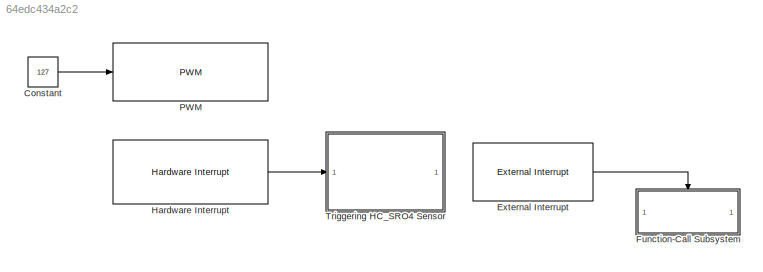
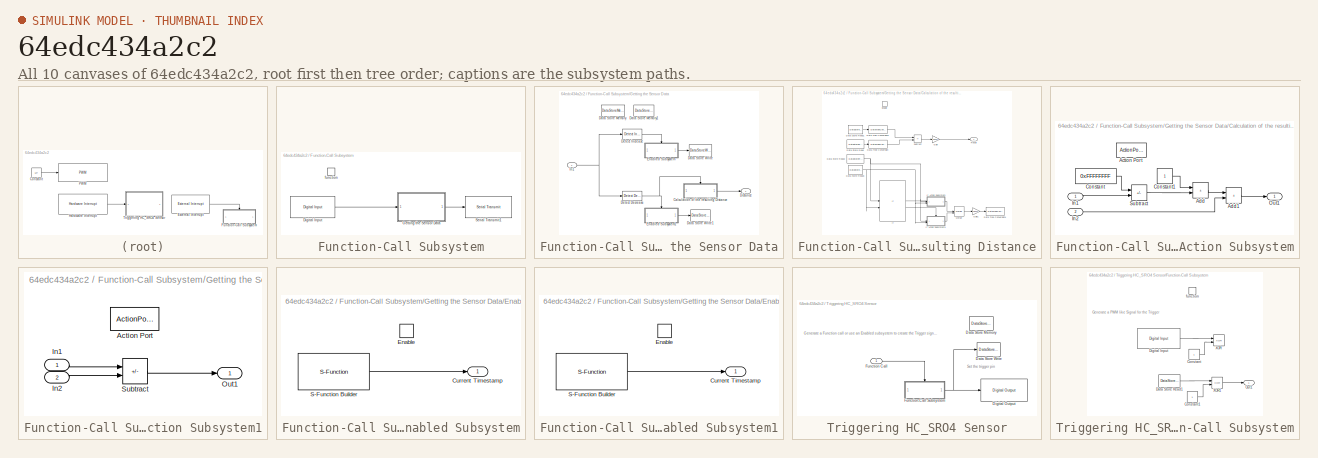
[diagram: thumbnail index - all 10 canvases of the model, root first then tree order]
MODEL slx_64edc434a2c2
KIND model
CONFIG AbsTol = auto
CONFIG EnableMultiTasking = on
CONFIG FixedStep = auto
CONFIG MaxStep = auto
CONFIG MinStep = auto
CONFIG RelTol = 1e-3
CONFIG SampleTimeConstraint = Unconstrained
CONFIG SolverName = FixedStepAuto
CONFIG StartTime = 0.0
CONFIG StopTime = inf
BLOCK [Constant] Constant
  Value = 127
BLOCK [Reference] External Interrupt  REF=arduinolib/External Interrupt
  SourceBlock = arduinolib/External Interrupt
  SourceType = Arduino Interrupt Block
BLOCK [SubSystem] Function-Call Subsystem
  TreatAsAtomicUnit = on
BLOCK [Reference] Function-Call Subsystem/Digital Input  REF=arduinolib/Digital Input
  SourceBlock = arduinolib/Digital Input
  SourceType = Arduino Digital Input
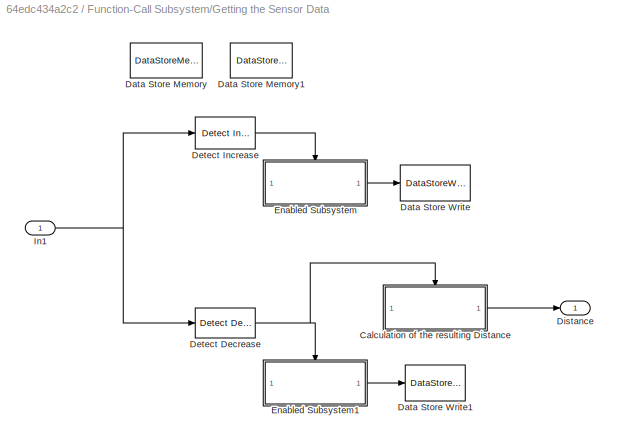
BLOCK [SubSystem] Function-Call Subsystem/Getting the Sensor Data
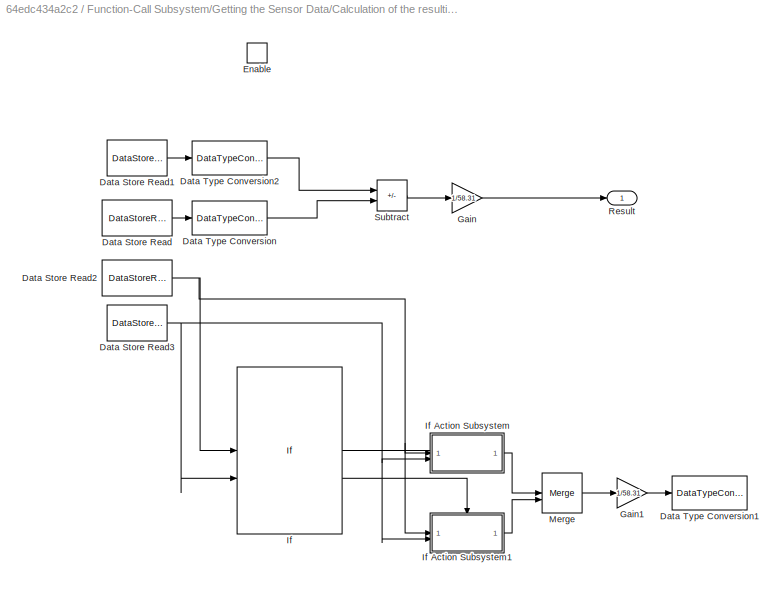
BLOCK [SubSystem] Function-Call Subsystem/Getting the Sensor Data/Calculation of the resulting Distance
  TreatAsAtomicUnit = on
BLOCK [DataStoreRead] Function-Call Subsystem/Getting the Sensor Data/Calculation of the resulting Distance/Data Store Read
  DataStoreName = Start_Time
  IndexOptions = Index vector (dialog)
  Indices = 1
  OutputSizes = 1
BLOCK [DataStoreRead] Function-Call Subsystem/Getting the Sensor Data/Calculation of the resulting Distance/Data Store Read1
  DataStoreName = Stop_Time
  IndexOptions = Index vector (dialog)
  Indices = 1
  OutputSizes = 1
BLOCK [DataStoreRead] Function-Call Subsystem/Getting the Sensor Data/Calculation of the resulting Distance/Data Store Read2
  Commented = on
  DataStoreName = Start_Time
  IndexOptions = Index vector (dialog)
  Indices = 1
  OutputSizes = 1
BLOCK [DataStoreRead] Function-Call Subsystem/Getting the Sensor Data/Calculation of the resulting Distance/Data Store Read3
  Commented = on
  DataStoreName = Stop_Time
  IndexOptions = Index vector (dialog)
  Indices = 1
  OutputSizes = 1
BLOCK [DataTypeConversion] Function-Call Subsystem/Getting the Sensor Data/Calculation of the resulting Distance/Data Type Conversion
  OutDataTypeStr = double
  RndMeth = Floor
  SaturateOnIntegerOverflow = off
BLOCK [DataTypeConversion] Function-Call Subsystem/Getting the Sensor Data/Calculation of the resulting Distance/Data Type Conversion1
  Commented = on
  OutDataTypeStr = double
  RndMeth = Floor
  SaturateOnIntegerOverflow = off
BLOCK [DataTypeConversion] Function-Call Subsystem/Getting the Sensor Data/Calculation of the resulting Distance/Data Type Conversion2
  OutDataTypeStr = double
  RndMeth = Floor
  SaturateOnIntegerOverflow = off
BLOCK [EnablePort] Function-Call Subsystem/Getting the Sensor Data/Calculation of the resulting Distance/Enable
BLOCK [Gain] Function-Call Subsystem/Getting the Sensor Data/Calculation of the resulting Distance/Gain
  Gain = 1/58.31
BLOCK [Gain] Function-Call Subsystem/Getting the Sensor Data/Calculation of the resulting Distance/Gain1
  Commented = on
  Gain = 1/58.31
BLOCK [If] Function-Call Subsystem/Getting the Sensor Data/Calculation of the resulting Distance/If
  Commented = on
  IfExpression = u1 > u2
  NumInputs = 2
BLOCK [SubSystem] Function-Call Subsystem/Getting the Sensor Data/Calculation of the resulting Distance/If Action Subsystem
  Commented = on
  TreatAsAtomicUnit = on
BLOCK [ActionPort] Function-Call Subsystem/Getting the Sensor Data/Calculation of the resulting Distance/If Action Subsystem/Action Port
BLOCK [Sum] Function-Call Subsystem/Getting the Sensor Data/Calculation of the resulting Distance/If Action Subsystem/Add
  IconShape = rectangular
BLOCK [Sum] Function-Call Subsystem/Getting the Sensor Data/Calculation of the resulting Distance/If Action Subsystem/Add1
  IconShape = rectangular
BLOCK [Constant] Function-Call Subsystem/Getting the Sensor Data/Calculation of the resulting Distance/If Action Subsystem/Constant
  Value = 0xFFFFFFFF
BLOCK [Constant] Function-Call Subsystem/Getting the Sensor Data/Calculation of the resulting Distance/If Action Subsystem/Constant1
BLOCK [Inport] Function-Call Subsystem/Getting the Sensor Data/Calculation of the resulting Distance/If Action Subsystem/In1
BLOCK [Inport] Function-Call Subsystem/Getting the Sensor Data/Calculation of the resulting Distance/If Action Subsystem/In2
  Port = 2
BLOCK [Outport] Function-Call Subsystem/Getting the Sensor Data/Calculation of the resulting Distance/If Action Subsystem/Out1
BLOCK [Sum] Function-Call Subsystem/Getting the Sensor Data/Calculation of the resulting Distance/If Action Subsystem/Subtract
  IconShape = rectangular
  Inputs = +-
BLOCK [SubSystem] Function-Call Subsystem/Getting the Sensor Data/Calculation of the resulting Distance/If Action Subsystem1
  Commented = on
  TreatAsAtomicUnit = on
BLOCK [ActionPort] Function-Call Subsystem/Getting the Sensor Data/Calculation of the resulting Distance/If Action Subsystem1/Action Port
BLOCK [Inport] Function-Call Subsystem/Getting the Sensor Data/Calculation of the resulting Distance/If Action Subsystem1/In1
BLOCK [Inport] Function-Call Subsystem/Getting the Sensor Data/Calculation of the resulting Distance/If Action Subsystem1/In2
  Port = 2
BLOCK [Outport] Function-Call Subsystem/Getting the Sensor Data/Calculation of the resulting Distance/If Action Subsystem1/Out1
BLOCK [Sum] Function-Call Subsystem/Getting the Sensor Data/Calculation of the resulting Distance/If Action Subsystem1/Subtract
  IconShape = rectangular
  Inputs = +-
BLOCK [Merge] Function-Call Subsystem/Getting the Sensor Data/Calculation of the resulting Distance/Merge
  Commented = on
BLOCK [Outport] Function-Call Subsystem/Getting the Sensor Data/Calculation of the resulting Distance/Result
BLOCK [Sum] Function-Call Subsystem/Getting the Sensor Data/Calculation of the resulting Distance/Subtract
  IconShape = rectangular
  Inputs = +-
BLOCK [DataStoreMemory] Function-Call Subsystem/Getting the Sensor Data/Data Store Memory
  DataStoreName = Start_Time
  ShowAdditionalParam = off
  WriteAfterWriteMsg = warning
BLOCK [DataStoreMemory] Function-Call Subsystem/Getting the Sensor Data/Data Store Memory1
  DataStoreName = Stop_Time
  ShowAdditionalParam = off
  WriteAfterWriteMsg = warning
BLOCK [DataStoreWrite] Function-Call Subsystem/Getting the Sensor Data/Data Store Write
  DataStoreName = Start_Time
  IndexOptions = Index vector (dialog)
  Indices = 1
  OutputSizes = 1
BLOCK [DataStoreWrite] Function-Call Subsystem/Getting the Sensor Data/Data Store Write1
  DataStoreName = Stop_Time
  IndexOptions = Index vector (dialog)
  Indices = 1
  OutputSizes = 1
BLOCK [Reference] Function-Call Subsystem/Getting the Sensor Data/Detect Decrease  REF=simulink/Logic and Bit
Operations/Detect
Decrease
  SourceBlock = simulink/Logic and Bit\nOperations/Detect\nDecrease
  SourceType = Detect Decrease
BLOCK [Reference] Function-Call Subsystem/Getting the Sensor Data/Detect Increase  REF=simulink/Logic and Bit
Operations/Detect
Increase
  SourceBlock = simulink/Logic and Bit\nOperations/Detect\nIncrease
  SourceType = Detect Increase
BLOCK [Outport] Function-Call Subsystem/Getting the Sensor Data/Distance
BLOCK [SubSystem] Function-Call Subsystem/Getting the Sensor Data/Enabled Subsystem
  TreatAsAtomicUnit = on
BLOCK [Outport] Function-Call Subsystem/Getting the Sensor Data/Enabled Subsystem/Current Timestamp
BLOCK [EnablePort] Function-Call Subsystem/Getting the Sensor Data/Enabled Subsystem/Enable
BLOCK [S-Function] Function-Call Subsystem/Getting the Sensor Data/Enabled Subsystem/S-Function Builder
  CopyFcn = set_param(gcbh,'LinkStatus','none')
  EnableBusSupport = off
  FunctionName = Micros
  OpenFcn = sfunctionwizard(gcbh)
  SFcnIsStateOwnerBlock = off
  SFunctionDeploymentMode = off
  SFunctionModules = Micros_wrapper.c
BLOCK [SubSystem] Function-Call Subsystem/Getting the Sensor Data/Enabled Subsystem1
  TreatAsAtomicUnit = on
BLOCK [Outport] Function-Call Subsystem/Getting the Sensor Data/Enabled Subsystem1/Current Timestamp
BLOCK [EnablePort] Function-Call Subsystem/Getting the Sensor Data/Enabled Subsystem1/Enable
BLOCK [S-Function] Function-Call Subsystem/Getting the Sensor Data/Enabled Subsystem1/S-Function Builder
  CopyFcn = set_param(gcbh,'LinkStatus','none')
  EnableBusSupport = off
  FunctionName = Micros
  OpenFcn = sfunctionwizard(gcbh)
  SFcnIsStateOwnerBlock = off
  SFunctionDeploymentMode = off
  SFunctionModules = Micros_wrapper.c
BLOCK [Inport] Function-Call Subsystem/Getting the Sensor Data/In1
BLOCK [Reference] Function-Call Subsystem/Serial Transmit1  REF=arduinolib/Serial Transmit
  SourceBlock = arduinolib/Serial Transmit
  SourceType = Arduino Serial Transmit
BLOCK [TriggerPort] Function-Call Subsystem/function
  StatesWhenEnabling = held
  TriggerType = function-call
  VariantControl = (inherit)
BLOCK [Reference] Hardware Interrupt  REF=arduinoavrlib/Hardware Interrupt
  SourceBlock = arduinoavrlib/Hardware Interrupt
  SourceType = HardwareInterrupt
  UserDataPersistent = on
BLOCK [Reference] PWM  REF=arduinoavrlib/PWM
  SourceBlock = arduinoavrlib/PWM
  SourceType = codertarget.arduinobase.internal.arduino_AVRPWMOutput
BLOCK [SubSystem] Triggering HC_SRO4 Sensor
BLOCK [DataStoreMemory] Triggering HC_SRO4 Sensor/Data Store Memory
  DataStoreName = Toggle_State
  ShowAdditionalParam = off
  WriteAfterWriteMsg = warning
BLOCK [DataStoreWrite] Triggering HC_SRO4 Sensor/Data Store Write
  DataStoreName = Toggle_State
  IndexOptions = Index vector (dialog)
  Indices = 1
  OutputSizes = 1
BLOCK [Reference] Triggering HC_SRO4 Sensor/Digital Output  REF=arduinolib/Digital Output
  SourceBlock = arduinolib/Digital Output
  SourceType = Arduino Digital Output
BLOCK [Inport] Triggering HC_SRO4 Sensor/Function Call
BLOCK [SubSystem] Triggering HC_SRO4 Sensor/Function-Call Subsystem
  TreatAsAtomicUnit = on
BLOCK [Constant] Triggering HC_SRO4 Sensor/Function-Call Subsystem/Constant
  Commented = on
BLOCK [Constant] Triggering HC_SRO4 Sensor/Function-Call Subsystem/Constant1
BLOCK [DataStoreRead] Triggering HC_SRO4 Sensor/Function-Call Subsystem/Data Store Read1
  DataStoreName = Toggle_State
  IndexOptions = Index vector (dialog)
  Indices = 1
  OutputSizes = 1
BLOCK [Reference] Triggering HC_SRO4 Sensor/Function-Call Subsystem/Digital Input  REF=arduinolib/Digital Input
  Commented = on
  SourceBlock = arduinolib/Digital Input
  SourceType = Arduino Digital Input
BLOCK [Outport] Triggering HC_SRO4 Sensor/Function-Call Subsystem/Out1
BLOCK [Logic] Triggering HC_SRO4 Sensor/Function-Call Subsystem/XOR
  AllPortsSameDT = off
  Commented = on
  IconShape = distinctive
  Operator = XOR
  OutDataTypeStr = boolean
BLOCK [Logic] Triggering HC_SRO4 Sensor/Function-Call Subsystem/XOR1
  AllPortsSameDT = off
  IconShape = distinctive
  Operator = XOR
  OutDataTypeStr = boolean
BLOCK [TriggerPort] Triggering HC_SRO4 Sensor/Function-Call Subsystem/function
  StatesWhenEnabling = held
  TriggerType = function-call
  VariantControl = (inherit)
ANNOTATION Triggering HC_SRO4 Sensor: Generate a Function call or use an Enabled subsystem to create the Trigger signal for the Sensor
ANNOTATION Triggering HC_SRO4 Sensor: Set the trigger pin
ANNOTATION Triggering HC_SRO4 Sensor/Function-Call Subsystem: Generate a PWM like Signal for the Trigger
LINE Constant:1 -> PWM:1
LINE External Interrupt:1 -> Function-Call Subsystem:trigger
LINE Function-Call Subsystem/Digital Input:1 -> Function-Call Subsystem/Getting the Sensor Data:1
LINE Function-Call Subsystem/Getting the Sensor Data/Calculation of the resulting Distance/Data Store Read1:1 -> Function-Call Subsystem/Getting the Sensor Data/Calculation of the resulting Distance/Data Type Conversion2:1
NET Function-Call Subsystem/Getting the Sensor Data/Calculation of the resulting Distance/Data Store Read2:1 -> Function-Call Subsystem/Getting the Sensor Data/Calculation of the resulting Distance/If Action Subsystem1:1, Function-Call Subsystem/Getting the Sensor Data/Calculation of the resulting Distance/If Action Subsystem:1, Function-Call Subsystem/Getting the Sensor Data/Calculation of the resulting Distance/If:1
NET Function-Call Subsystem/Getting the Sensor Data/Calculation of the resulting Distance/Data Store Read3:1 -> Function-Call Subsystem/Getting the Sensor Data/Calculation of the resulting Distance/If Action Subsystem1:2, Function-Call Subsystem/Getting the Sensor Data/Calculation of the resulting Distance/If Action Subsystem:2, Function-Call Subsystem/Getting the Sensor Data/Calculation of the resulting Distance/If:2
LINE Function-Call Subsystem/Getting the Sensor Data/Calculation of the resulting Distance/Data Store Read:1 -> Function-Call Subsystem/Getting the Sensor Data/Calculation of the resulting Distance/Data Type Conversion:1
LINE Function-Call Subsystem/Getting the Sensor Data/Calculation of the resulting Distance/Data Type Conversion2:1 -> Function-Call Subsystem/Getting the Sensor Data/Calculation of the resulting Distance/Subtract:1
LINE Function-Call Subsystem/Getting the Sensor Data/Calculation of the resulting Distance/Data Type Conversion:1 -> Function-Call Subsystem/Getting the Sensor Data/Calculation of the resulting Distance/Subtract:2
LINE Function-Call Subsystem/Getting the Sensor Data/Calculation of the resulting Distance/Gain1:1 -> Function-Call Subsystem/Getting the Sensor Data/Calculation of the resulting Distance/Data Type Conversion1:1
LINE Function-Call Subsystem/Getting the Sensor Data/Calculation of the resulting Distance/Gain:1 -> Function-Call Subsystem/Getting the Sensor Data/Calculation of the resulting Distance/Result:1
LINE Function-Call Subsystem/Getting the Sensor Data/Calculation of the resulting Distance/If Action Subsystem/Add1:1 -> Function-Call Subsystem/Getting the Sensor Data/Calculation of the resulting Distance/If Action Subsystem/Out1:1
LINE Function-Call Subsystem/Getting the Sensor Data/Calculation of the resulting Distance/If Action Subsystem/Add:1 -> Function-Call Subsystem/Getting the Sensor Data/Calculation of the resulting Distance/If Action Subsystem/Add1:1
LINE Function-Call Subsystem/Getting the Sensor Data/Calculation of the resulting Distance/If Action Subsystem/Constant1:1 -> Function-Call Subsystem/Getting the Sensor Data/Calculation of the resulting Distance/If Action Subsystem/Add:1
LINE Function-Call Subsystem/Getting the Sensor Data/Calculation of the resulting Distance/If Action Subsystem/Constant:1 -> Function-Call Subsystem/Getting the Sensor Data/Calculation of the resulting Distance/If Action Subsystem/Subtract:1
LINE Function-Call Subsystem/Getting the Sensor Data/Calculation of the resulting Distance/If Action Subsystem/In1:1 -> Function-Call Subsystem/Getting the Sensor Data/Calculation of the resulting Distance/If Action Subsystem/Subtract:2
LINE Function-Call Subsystem/Getting the Sensor Data/Calculation of the resulting Distance/If Action Subsystem/In2:1 -> Function-Call Subsystem/Getting the Sensor Data/Calculation of the resulting Distance/If Action Subsystem/Add1:2
LINE Function-Call Subsystem/Getting the Sensor Data/Calculation of the resulting Distance/If Action Subsystem/Subtract:1 -> Function-Call Subsystem/Getting the Sensor Data/Calculation of the resulting Distance/If Action Subsystem/Add:2
LINE Function-Call Subsystem/Getting the Sensor Data/Calculation of the resulting Distance/If Action Subsystem1/In1:1 -> Function-Call Subsystem/Getting the Sensor Data/Calculation of the resulting Distance/If Action Subsystem1/Subtract:1
LINE Function-Call Subsystem/Getting the Sensor Data/Calculation of the resulting Distance/If Action Subsystem1/In2:1 -> Function-Call Subsystem/Getting the Sensor Data/Calculation of the resulting Distance/If Action Subsystem1/Subtract:2
LINE Function-Call Subsystem/Getting the Sensor Data/Calculation of the resulting Distance/If Action Subsystem1/Subtract:1 -> Function-Call Subsystem/Getting the Sensor Data/Calculation of the resulting Distance/If Action Subsystem1/Out1:1
LINE Function-Call Subsystem/Getting the Sensor Data/Calculation of the resulting Distance/If Action Subsystem1:1 -> Function-Call Subsystem/Getting the Sensor Data/Calculation of the resulting Distance/Merge:2
LINE Function-Call Subsystem/Getting the Sensor Data/Calculation of the resulting Distance/If Action Subsystem:1 -> Function-Call Subsystem/Getting the Sensor Data/Calculation of the resulting Distance/Merge:1
LINE Function-Call Subsystem/Getting the Sensor Data/Calculation of the resulting Distance/If:1 -> Function-Call Subsystem/Getting the Sensor Data/Calculation of the resulting Distance/If Action Subsystem:ifaction
LINE Function-Call Subsystem/Getting the Sensor Data/Calculation of the resulting Distance/If:2 -> Function-Call Subsystem/Getting the Sensor Data/Calculation of the resulting Distance/If Action Subsystem1:ifaction
LINE Function-Call Subsystem/Getting the Sensor Data/Calculation of the resulting Distance/Merge:1 -> Function-Call Subsystem/Getting the Sensor Data/Calculation of the resulting Distance/Gain1:1
LINE Function-Call Subsystem/Getting the Sensor Data/Calculation of the resulting Distance/Subtract:1 -> Function-Call Subsystem/Getting the Sensor Data/Calculation of the resulting Distance/Gain:1
LINE Function-Call Subsystem/Getting the Sensor Data/Calculation of the resulting Distance:1 -> Function-Call Subsystem/Getting the Sensor Data/Distance:1
NET Function-Call Subsystem/Getting the Sensor Data/Detect Decrease:1 -> Function-Call Subsystem/Getting the Sensor Data/Calculation of the resulting Distance:enable, Function-Call Subsystem/Getting the Sensor Data/Enabled Subsystem1:enable
LINE Function-Call Subsystem/Getting the Sensor Data/Detect Increase:1 -> Function-Call Subsystem/Getting the Sensor Data/Enabled Subsystem:enable
LINE Function-Call Subsystem/Getting the Sensor Data/Enabled Subsystem/S-Function Builder:1 -> Function-Call Subsystem/Getting the Sensor Data/Enabled Subsystem/Current Timestamp:1
LINE Function-Call Subsystem/Getting the Sensor Data/Enabled Subsystem1/S-Function Builder:1 -> Function-Call Subsystem/Getting the Sensor Data/Enabled Subsystem1/Current Timestamp:1
LINE Function-Call Subsystem/Getting the Sensor Data/Enabled Subsystem1:1 -> Function-Call Subsystem/Getting the Sensor Data/Data Store Write1:1
LINE Function-Call Subsystem/Getting the Sensor Data/Enabled Subsystem:1 -> Function-Call Subsystem/Getting the Sensor Data/Data Store Write:1
NET Function-Call Subsystem/Getting the Sensor Data/In1:1 -> Function-Call Subsystem/Getting the Sensor Data/Detect Decrease:1, Function-Call Subsystem/Getting the Sensor Data/Detect Increase:1
LINE Function-Call Subsystem/Getting the Sensor Data:1 -> Function-Call Subsystem/Serial Transmit1:1
LINE Hardware Interrupt:1 -> Triggering HC_SRO4 Sensor:1
LINE Triggering HC_SRO4 Sensor/Function Call:1 -> Triggering HC_SRO4 Sensor/Function-Call Subsystem:trigger
LINE Triggering HC_SRO4 Sensor/Function-Call Subsystem/Constant1:1 -> Triggering HC_SRO4 Sensor/Function-Call Subsystem/XOR1:2
LINE Triggering HC_SRO4 Sensor/Function-Call Subsystem/Constant:1 -> Triggering HC_SRO4 Sensor/Function-Call Subsystem/XOR:2
LINE Triggering HC_SRO4 Sensor/Function-Call Subsystem/Data Store Read1:1 -> Triggering HC_SRO4 Sensor/Function-Call Subsystem/XOR1:1
LINE Triggering HC_SRO4 Sensor/Function-Call Subsystem/Digital Input:1 -> Triggering HC_SRO4 Sensor/Function-Call Subsystem/XOR:1
LINE Triggering HC_SRO4 Sensor/Function-Call Subsystem/XOR1:1 -> Triggering HC_SRO4 Sensor/Function-Call Subsystem/Out1:1
NET Triggering HC_SRO4 Sensor/Function-Call Subsystem:1 -> Triggering HC_SRO4 Sensor/Data Store Write:1, Triggering HC_SRO4 Sensor/Digital Output:1
note: NET lines group one-source signal fan-out (src -> all destinations, sorted); 1:1 wires keep LINE
